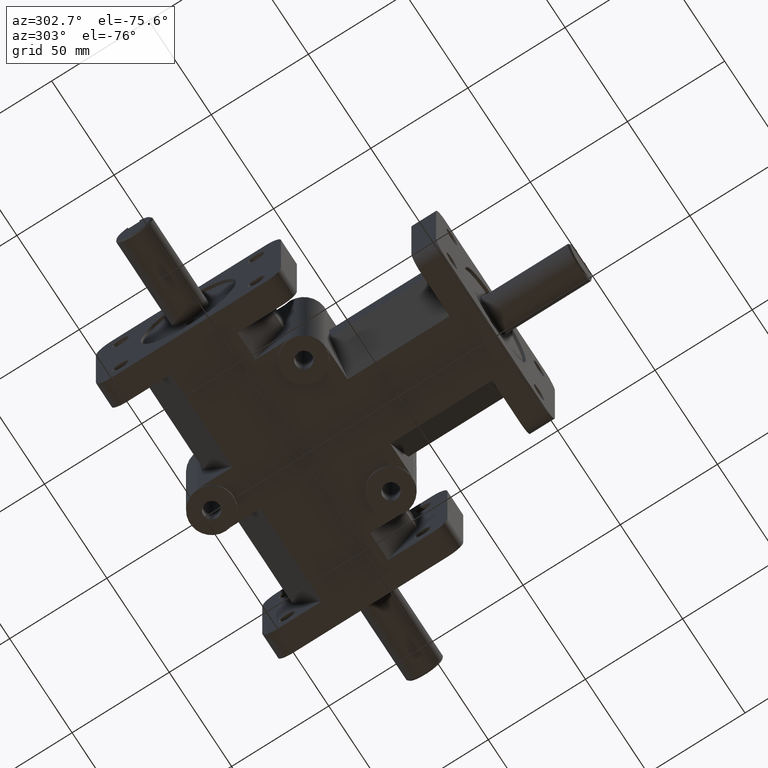
[diagram: clean part render]
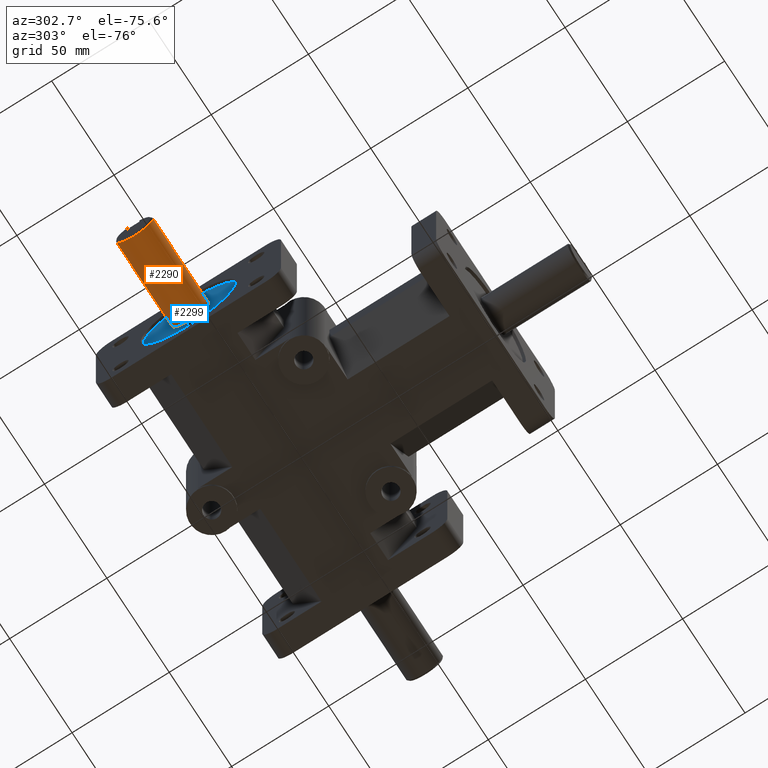
[diagram: same view with the hole feature highlighted: cylindrical wall and planar end face, labeled with their STEP entity ids]
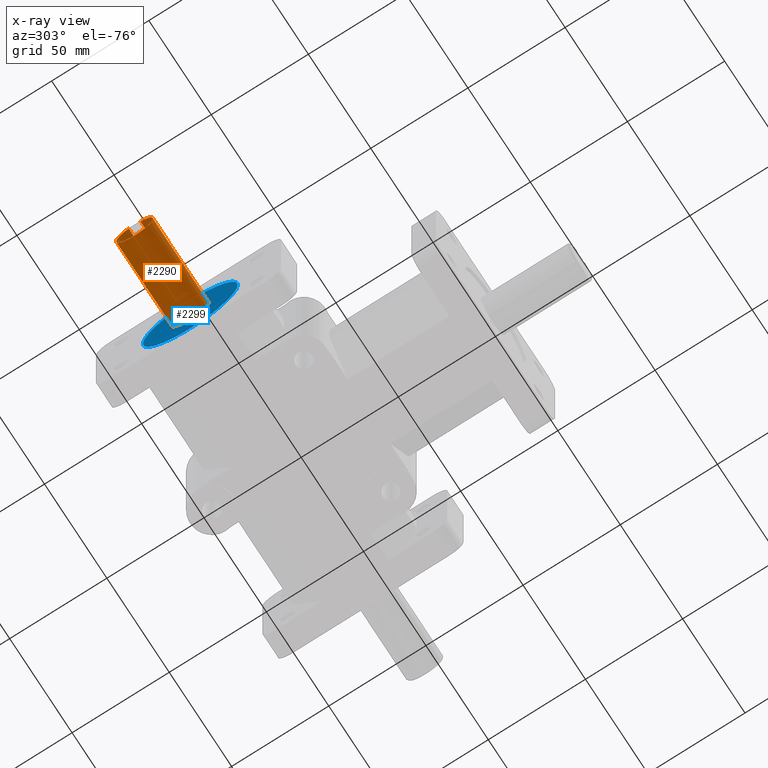
[diagram: x-ray of the same camera — body ghosted, the hole faces saturated]
A machine part, auxiliary view. The highlighted faces form one hole feature of diameter 19 mm: the cylindrical wall (entity #2290, orange) and its adjacent planar end face (entity #2299, blue) — they share a circular edge in the B-rep.
The next image is the same camera in x-ray (body ghosted, the hole faces saturated) — the bore reads through the body.
Wall:
#171=FACE_OUTER_BOUND('',#300,.T.);
#300=EDGE_LOOP('',(#1657,#1658,#1659,#1660,#1661,#1662,#1663,#1664));
#477=LINE('',#3445,#699);
#481=LINE('',#3458,#703);
#487=LINE('',#3477,#709);
#699=VECTOR('',#2742,1.);
#703=VECTOR('',#2748,1.);
#709=VECTOR('',#2764,9.5);
#912=CIRCLE('',#2449,9.5);
#913=CIRCLE('',#2451,9.5);
#914=CIRCLE('',#2452,9.5);
#915=CIRCLE('',#2453,9.5);
#1032=VERTEX_POINT('',#3443);
#1033=VERTEX_POINT('',#3444);
#1037=VERTEX_POINT('',#3456);
#1038=VERTEX_POINT('',#3457);
#1042=VERTEX_POINT('',#3474);
#1043=VERTEX_POINT('',#3476);
#1268=EDGE_CURVE('',#1032,#1033,#477,.T.);
#1273=EDGE_CURVE('',#1037,#1038,#481,.T.);
#1280=EDGE_CURVE('',#1038,#1032,#912,.T.);
#1281=EDGE_CURVE('',#1042,#1033,#913,.T.);
#1282=EDGE_CURVE('',#1042,#1043,#487,.T.);
#1283=EDGE_CURVE('',#1043,#1043,#914,.T.);
#1284=EDGE_CURVE('',#1037,#1042,#915,.T.);
#1657=ORIENTED_EDGE('',*,*,#1268,.T.);
#1658=ORIENTED_EDGE('',*,*,#1281,.F.);
#1659=ORIENTED_EDGE('',*,*,#1282,.T.);
#1660=ORIENTED_EDGE('',*,*,#1283,.F.);
#1661=ORIENTED_EDGE('',*,*,#1282,.F.);
#1662=ORIENTED_EDGE('',*,*,#1284,.F.);
#1663=ORIENTED_EDGE('',*,*,#1273,.T.);
#1664=ORIENTED_EDGE('',*,*,#1280,.T.);
#2230=CYLINDRICAL_SURFACE('',#2450,9.5);
#2290=ADVANCED_FACE('',(#171),#2230,.T.);
#2449=AXIS2_PLACEMENT_3D('',#3472,#2758,#2759);
#2450=AXIS2_PLACEMENT_3D('',#3473,#2760,#2761);
#2451=AXIS2_PLACEMENT_3D('',#3475,#2762,#2763);
#2452=AXIS2_PLACEMENT_3D('',#3478,#2765,#2766);
#2453=AXIS2_PLACEMENT_3D('',#3479,#2767,#2768);
#2742=DIRECTION('',(-1.,0.,0.));
#2748=DIRECTION('',(1.,0.,0.));
#2758=DIRECTION('center_axis',(1.,0.,0.));
#2759=DIRECTION('ref_axis',(0.,-1.,0.));
#2760=DIRECTION('center_axis',(-1.,0.,0.));
#2761=DIRECTION('ref_axis',(0.,-1.,0.));
#2762=DIRECTION('center_axis',(-1.,0.,0.));
#2763=DIRECTION('ref_axis',(0.,1.,0.));
#2764=DIRECTION('',(1.,0.,0.));
#2765=DIRECTION('center_axis',(1.,0.,0.));
#2766=DIRECTION('ref_axis',(0.,-1.,0.));
#2767=DIRECTION('center_axis',(-1.,0.,0.));
#2768=DIRECTION('ref_axis',(0.,1.,0.));
#3443=CARTESIAN_POINT('',(-78.925,108.125,9.01387818865997));
#3444=CARTESIAN_POINT('',(-116.263,108.125,9.01387818865997));
#3445=CARTESIAN_POINT('',(-94.263,108.125,9.01387818865997));
#3456=CARTESIAN_POINT('',(-116.263,114.125,9.01387818865997));
#3457=CARTESIAN_POINT('',(-78.925,114.125,9.01387818865997));
#3458=CARTESIAN_POINT('',(-94.263,114.125,9.01387818865997));
#3472=CARTESIAN_POINT('Origin',(-78.925,111.125,0.));
#3473=CARTESIAN_POINT('Origin',(-94.263,111.125,0.));
#3474=CARTESIAN_POINT('',(-116.263,120.625,-1.16341445918999E-15));
#3475=CARTESIAN_POINT('Origin',(-116.263,111.125,0.));
#3476=CARTESIAN_POINT('',(-71.501,120.625,-1.16341445918999E-15));
#3477=CARTESIAN_POINT('',(-94.263,120.625,-1.16341445918999E-15));
#3478=CARTESIAN_POINT('Origin',(-71.501,111.125,0.));
#3479=CARTESIAN_POINT('Origin',(-116.263,111.125,0.));
End face:
#15=FACE_BOUND('',#310,.T.);
#16=FACE_BOUND('',#311,.T.);
#17=FACE_BOUND('',#312,.T.);
#84=PLANE('',#2475);
#180=FACE_OUTER_BOUND('',#309,.T.);
#309=EDGE_LOOP('',(#1698));
#310=EDGE_LOOP('',(#1699));
#311=EDGE_LOOP('',(#1700));
#312=EDGE_LOOP('',(#1701));
#897=CIRCLE('',#2414,24.4602);
#914=CIRCLE('',#2452,9.5);
#921=CIRCLE('',#2464,2.38125);
#923=CIRCLE('',#2467,2.38125);
#1003=VERTEX_POINT('',#3345);
#1043=VERTEX_POINT('',#3476);
#1048=VERTEX_POINT('',#3496);
#1050=VERTEX_POINT('',#3502);
#1225=EDGE_CURVE('',#1003,#1003,#897,.T.);
#1283=EDGE_CURVE('',#1043,#1043,#914,.T.);
#1292=EDGE_CURVE('',#1048,#1048,#921,.T.);
#1295=EDGE_CURVE('',#1050,#1050,#923,.T.);
#1698=ORIENTED_EDGE('',*,*,#1225,.T.);
#1699=ORIENTED_EDGE('',*,*,#1283,.T.);
#1700=ORIENTED_EDGE('',*,*,#1292,.T.);
#1701=ORIENTED_EDGE('',*,*,#1295,.T.);
#2299=ADVANCED_FACE('',(#180,#15,#16,#17),#84,.F.);
#2414=AXIS2_PLACEMENT_3D('',#3347,#2654,#2655);
#2452=AXIS2_PLACEMENT_3D('',#3478,#2765,#2766);
#2464=AXIS2_PLACEMENT_3D('',#3497,#2791,#2792);
#2467=AXIS2_PLACEMENT_3D('',#3503,#2798,#2799);
#2475=AXIS2_PLACEMENT_3D('',#3519,#2817,#2818);
#2654=DIRECTION('center_axis',(-1.,0.,0.));
#2655=DIRECTION('ref_axis',(0.,1.,0.));
#2765=DIRECTION('center_axis',(1.,0.,0.));
#2766=DIRECTION('ref_axis',(0.,-1.,0.));
#2791=DIRECTION('center_axis',(1.,0.,0.));
#2792=DIRECTION('ref_axis',(0.,1.,0.));
#2798=DIRECTION('center_axis',(1.,0.,0.));
#2799=DIRECTION('ref_axis',(0.,1.,0.));
#2817=DIRECTION('center_axis',(1.,0.,0.));
#2818=DIRECTION('ref_axis',(0.,-1.,0.));
#3345=CARTESIAN_POINT('',(-71.501,86.6648,-2.99551056365041E-15));
#3347=CARTESIAN_POINT('Origin',(-71.501,111.125,0.));
#3476=CARTESIAN_POINT('',(-71.501,120.625,-1.16341445918999E-15));
#3478=CARTESIAN_POINT('Origin',(-71.501,111.125,0.));
#3496=CARTESIAN_POINT('',(-71.501,108.74375,-13.462));
#3497=CARTESIAN_POINT('Origin',(-71.501,111.125,-13.462));
#3502=CARTESIAN_POINT('',(-71.501,108.74375,13.462));
#3503=CARTESIAN_POINT('Origin',(-71.501,111.125,13.462));
#3519=CARTESIAN_POINT('Origin',(-71.501,112.856818181818,-4.24159109823932E-16));